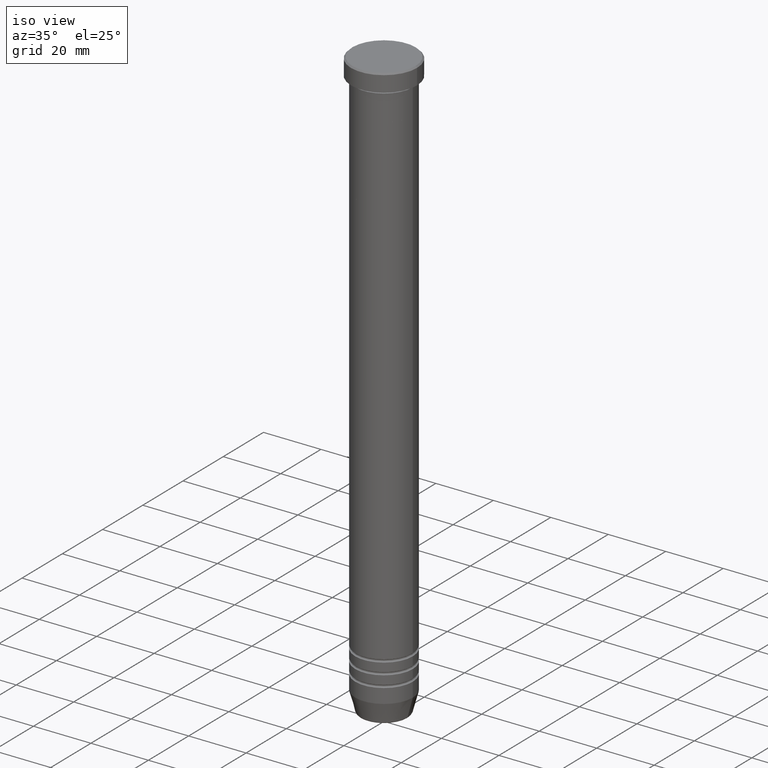
[diagram: clean part render]
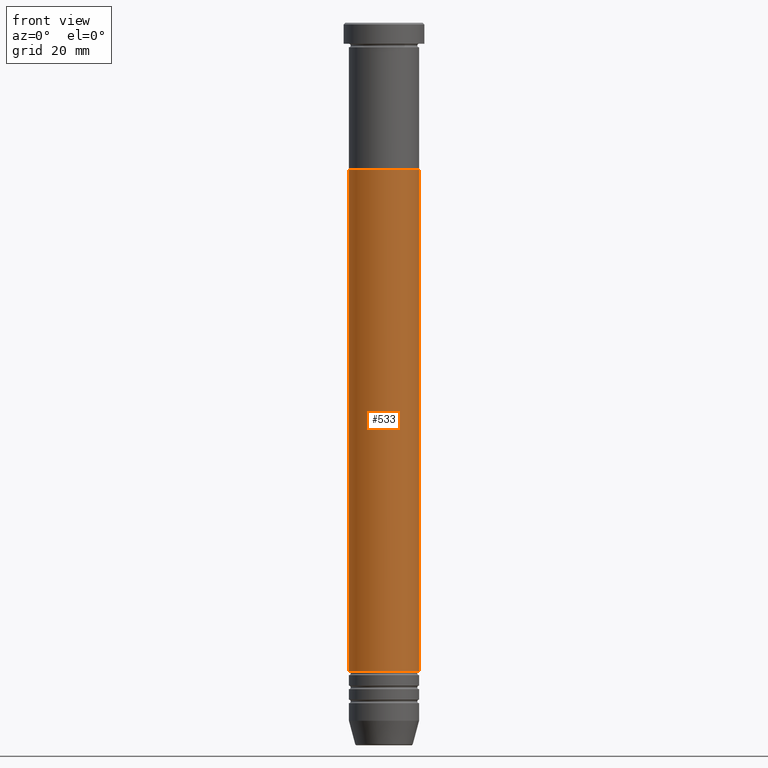
[diagram: tour spotlight — one face highlighted and labeled with its STEP entity id]
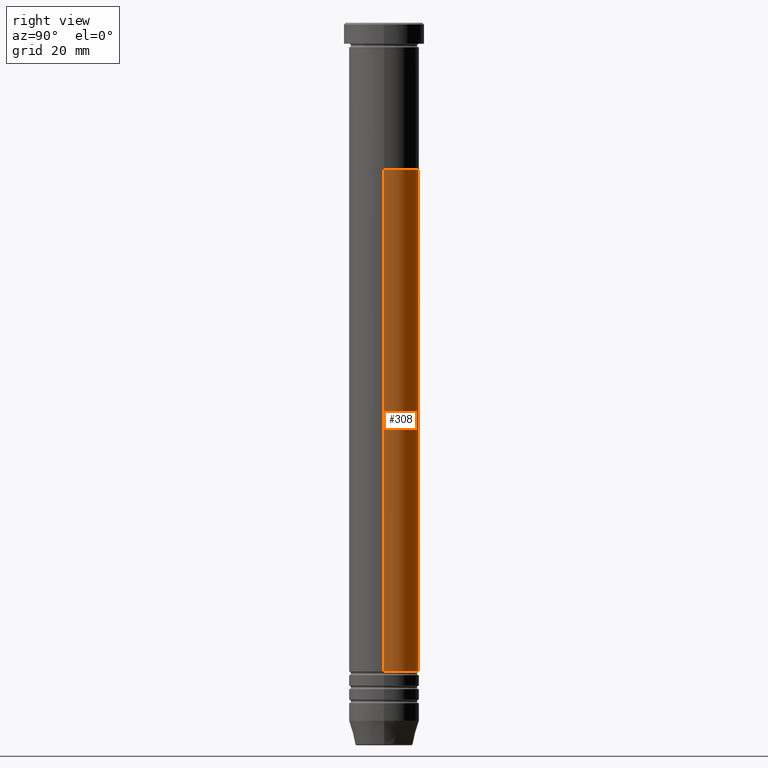
[diagram: tour spotlight — one face highlighted and labeled with its STEP entity id]
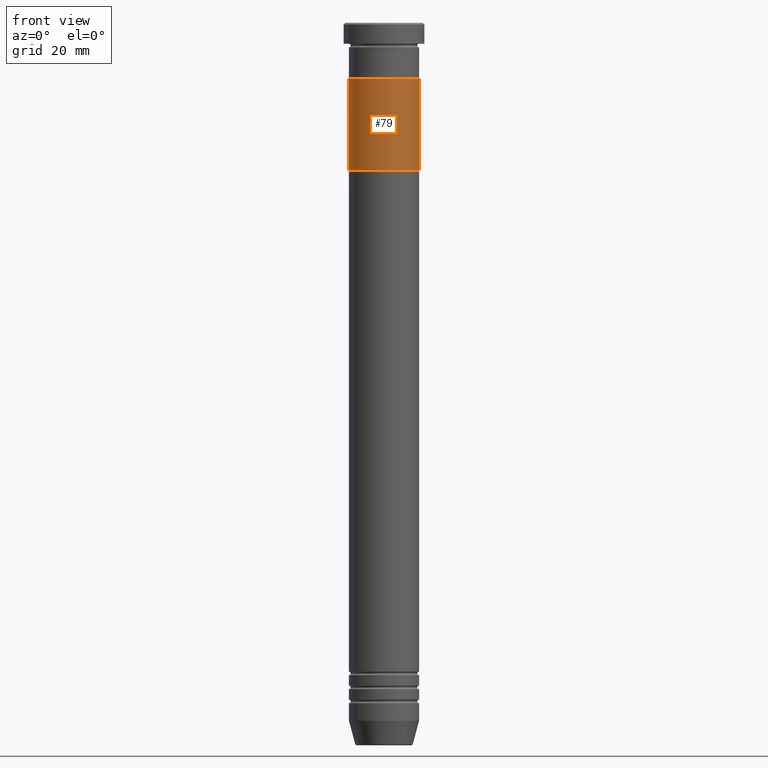
[diagram: tour spotlight — one face highlighted and labeled with its STEP entity id]
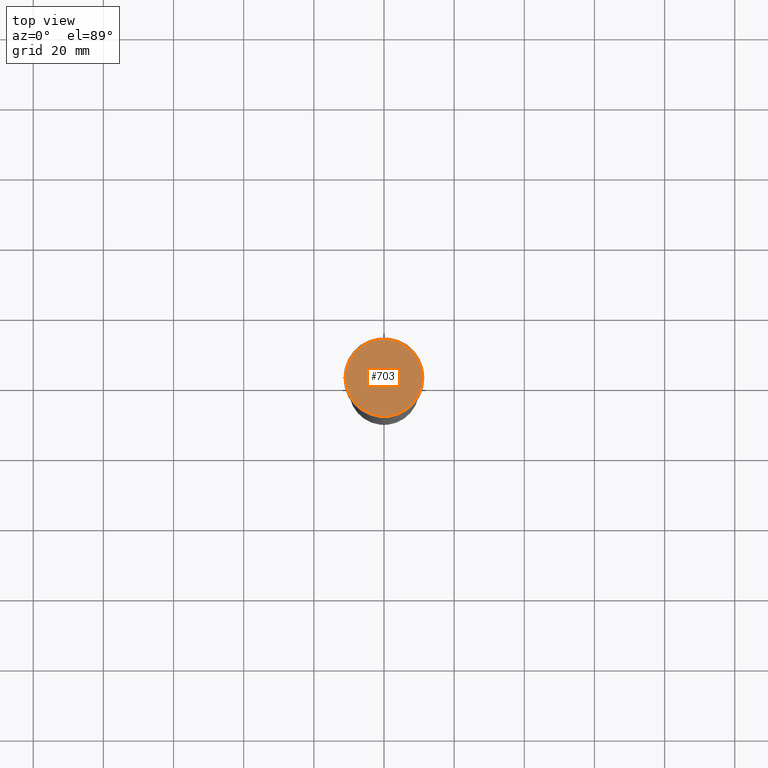
[diagram: tour spotlight — one face highlighted and labeled with its STEP entity id]
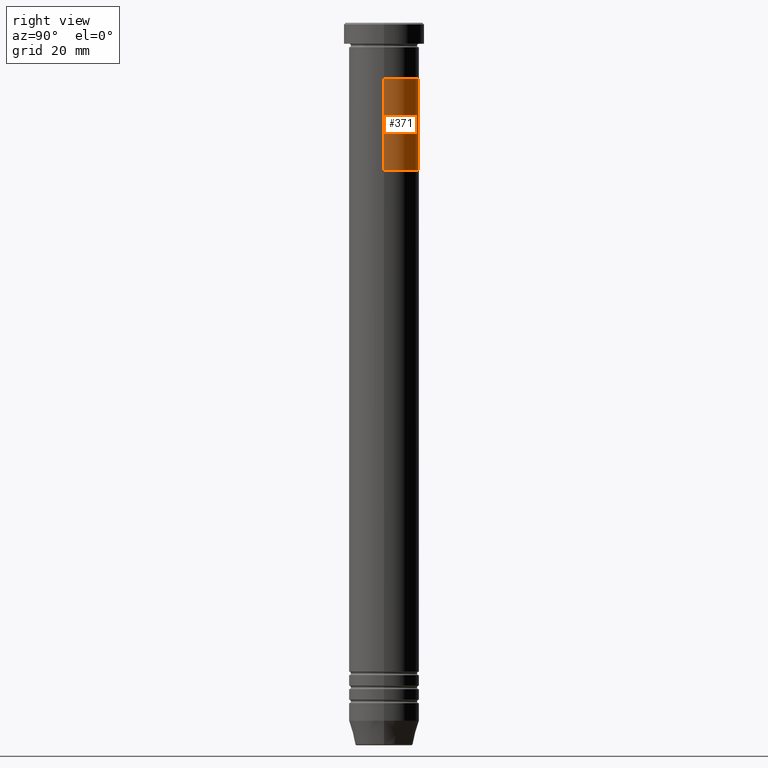
[diagram: tour spotlight — one face highlighted and labeled with its STEP entity id]
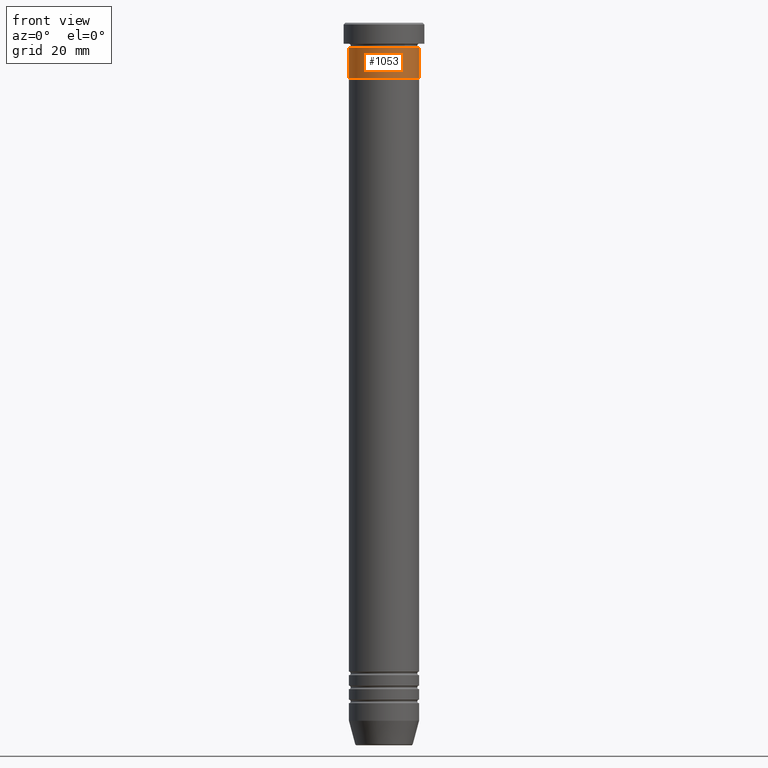
[diagram: tour spotlight — one face highlighted and labeled with its STEP entity id]
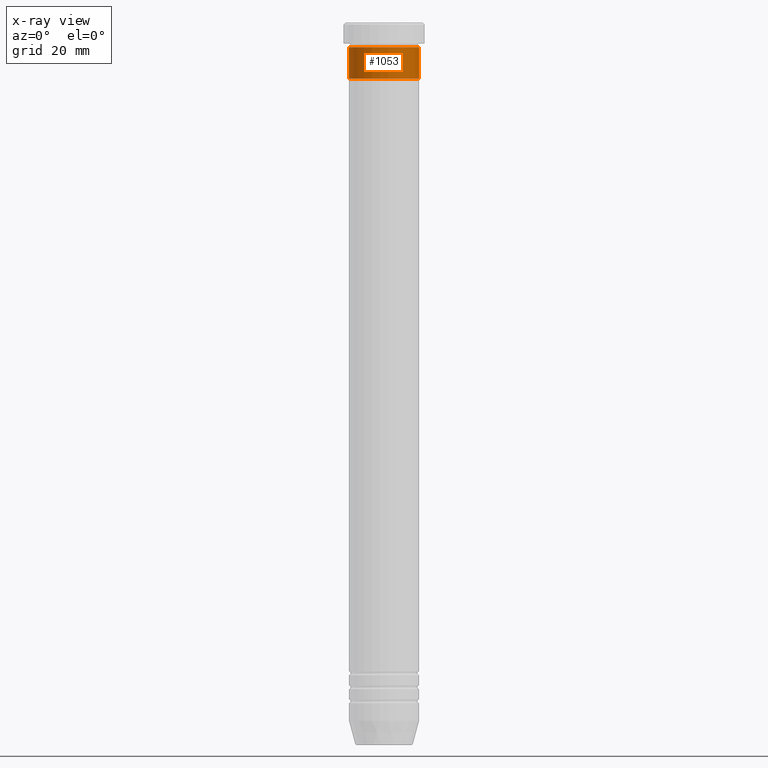
[diagram: x-ray of the same camera — body ghosted, this tour face saturated]
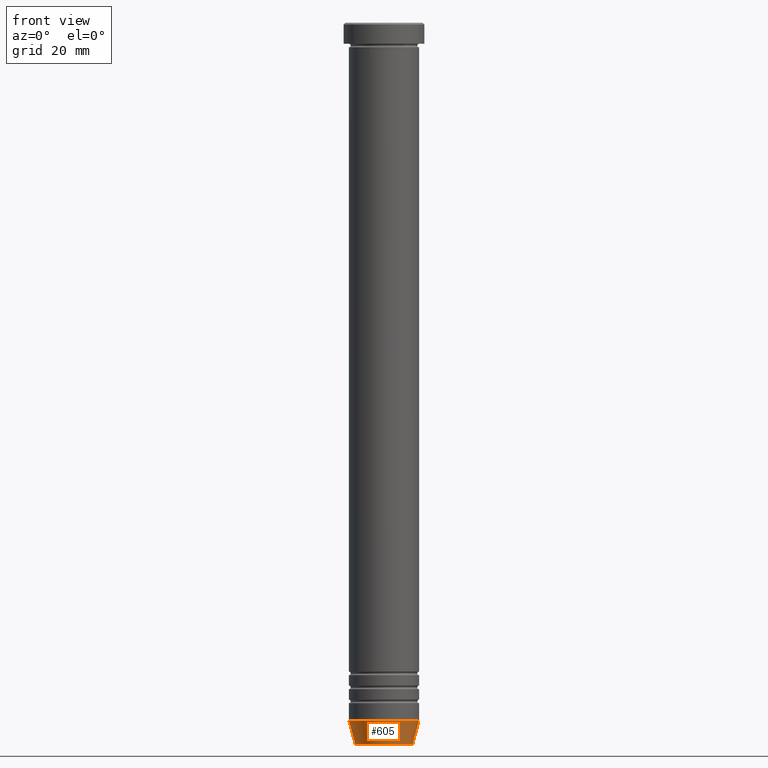
[diagram: tour spotlight — one face highlighted and labeled with its STEP entity id]
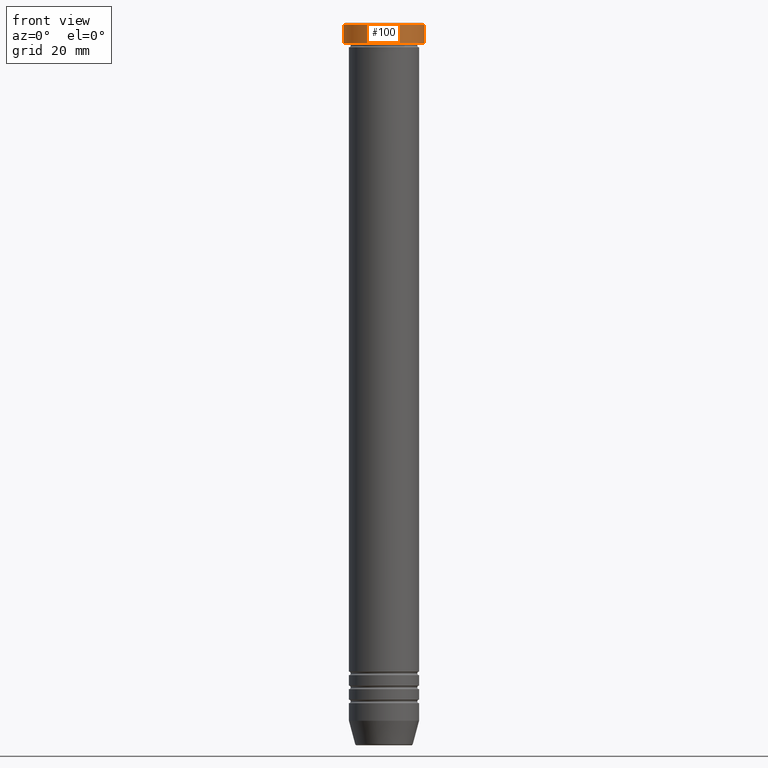
[diagram: tour spotlight — one face highlighted and labeled with its STEP entity id]
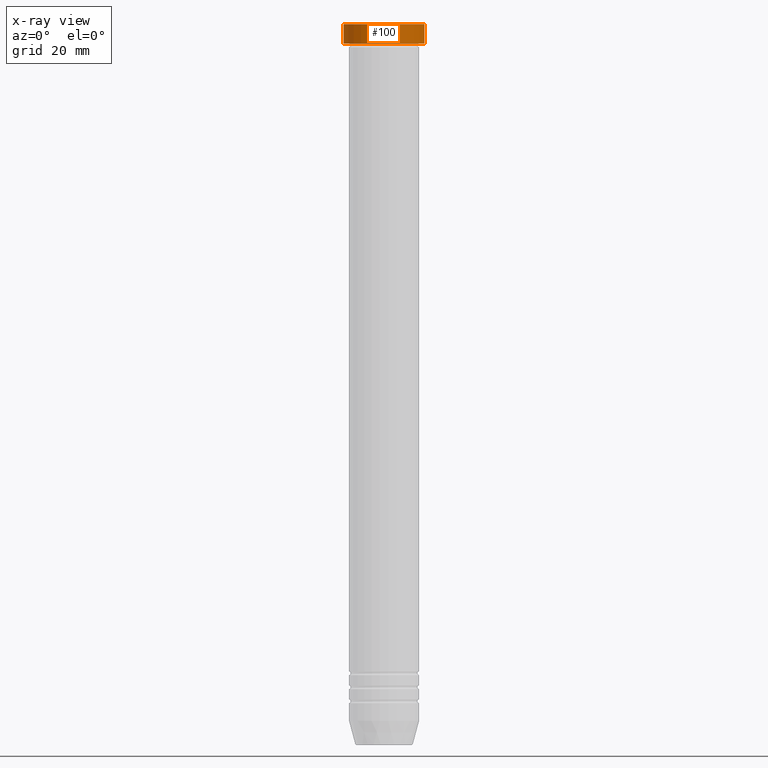
[diagram: x-ray of the same camera — body ghosted, this tour face saturated]
A machine part: a face-by-face anatomy tour. The part has 43 B-rep faces; the first image is the clean iso view, then the 8 largest visible faces are spotlighted one at a time (largest first), each with its STEP entity span.

Face 1 — front view, entity #533. In plain terms, the highlighted cylindrical surface (edge-blend (fillet) strip) has radius 10 mm, axis along (-0, -0, 1).
Definition (entity closure, byte-faithful):
#2 = VERTEX_POINT ( 'NONE', #704 ) ;
#48 = CARTESIAN_POINT ( 'NONE',  ( 9.999999999999992895, 0.000000000000000000, -185.0000000000000284 ) ) ;
#49 = CARTESIAN_POINT ( 'NONE',  ( -9.999999999999992895, 1.224646799147352665E-15, -185.0000000000000284 ) ) ;
#50 = DIRECTION ( 'NONE',  ( -0.000000000000000000, -0.000000000000000000, 1.000000000000000000 ) ) ;
#108 = DIRECTION ( 'NONE',  ( -0.000000000000000000, -0.000000000000000000, 1.000000000000000000 ) ) ;
#113 = FACE_OUTER_BOUND ( 'NONE', #596, .T. ) ;
#152 = CARTESIAN_POINT ( 'NONE',  ( -9.999999999999996447, 1.224646799147352862E-15, 0.000000000000000000 ) ) ;
#162 = VERTEX_POINT ( 'NONE', #745 ) ;
#171 = VERTEX_POINT ( 'NONE', #48 ) ;
#190 = DIRECTION ( 'NONE',  ( -0.000000000000000000, -0.000000000000000000, 1.000000000000000000 ) ) ;
#196 = CARTESIAN_POINT ( 'NONE',  ( 9.999999999999996447, 0.000000000000000000, 0.000000000000000000 ) ) ;
#248 = AXIS2_PLACEMENT_3D ( 'NONE', #1074, #278, #981 ) ;
#264 = DIRECTION ( 'NONE',  ( -0.000000000000000000, -0.000000000000000000, 1.000000000000000000 ) ) ;
#278 = DIRECTION ( 'NONE',  ( -0.000000000000000000, -0.000000000000000000, 1.000000000000000000 ) ) ;
#320 = VECTOR ( 'NONE', #108, 1000.000000000000000 ) ;
#359 = EDGE_CURVE ( 'NONE', #998, #162, #855, .T. ) ;
#415 = DIRECTION ( 'NONE',  ( 1.000000000000000000, 0.000000000000000000, 0.000000000000000000 ) ) ;
#443 = VECTOR ( 'NONE', #50, 1000.000000000000000 ) ;
#450 = CYLINDRICAL_SURFACE ( 'NONE', #653, 9.999999999999996447 ) ;
#453 = EDGE_CURVE ( 'NONE', #171, #2, #712, .T. ) ;
#507 = CARTESIAN_POINT ( 'NONE',  ( 0.000000000000000000, 0.000000000000000000, -41.99999999999999289 ) ) ;
#522 = EDGE_CURVE ( 'NONE', #998, #171, #1138, .T. ) ;
#530 = DIRECTION ( 'NONE',  ( 1.000000000000000000, 0.000000000000000000, 0.000000000000000000 ) ) ;
#533 = ADVANCED_FACE ( 'NONE', ( #113 ), #450, .T. ) ;
#560 = AXIS2_PLACEMENT_3D ( 'NONE', #507, #264, #415 ) ;
#596 = EDGE_LOOP ( 'NONE', ( #1090, #1065, #1137, #1073 ) ) ;
#653 = AXIS2_PLACEMENT_3D ( 'NONE', #972, #190, #530 ) ;
#668 = CIRCLE ( 'NONE', #560, 10.00000000000000000 ) ;
#704 = CARTESIAN_POINT ( 'NONE',  ( 10.00000000000000000, 0.000000000000000000, -41.99999999999999289 ) ) ;
#712 = LINE ( 'NONE', #196, #320 ) ;
#745 = CARTESIAN_POINT ( 'NONE',  ( -10.00000000000000178, 1.224646799147353454E-15, -41.99999999999999289 ) ) ;
#855 = LINE ( 'NONE', #152, #443 ) ;
#972 = CARTESIAN_POINT ( 'NONE',  ( 0.000000000000000000, 0.000000000000000000, 0.000000000000000000 ) ) ;
#981 = DIRECTION ( 'NONE',  ( 1.000000000000000000, 0.000000000000000000, 0.000000000000000000 ) ) ;
#998 = VERTEX_POINT ( 'NONE', #49 ) ;
#1065 = ORIENTED_EDGE ( 'NONE', *, *, #522, .T. ) ;
#1073 = ORIENTED_EDGE ( 'NONE', *, *, #1143, .F. ) ;
#1074 = CARTESIAN_POINT ( 'NONE',  ( 0.000000000000000000, 0.000000000000000000, -185.0000000000000284 ) ) ;
#1090 = ORIENTED_EDGE ( 'NONE', *, *, #359, .F. ) ;
#1137 = ORIENTED_EDGE ( 'NONE', *, *, #453, .T. ) ;
#1138 = CIRCLE ( 'NONE', #248, 9.999999999999992895 ) ;
#1143 = EDGE_CURVE ( 'NONE', #162, #2, #668, .T. ) ;

Face 2 — right view, entity #308. In plain terms, the highlighted cylindrical surface (edge-blend (fillet) strip) has radius 10 mm, axis along (-0, -0, 1).
Definition (entity closure, byte-faithful):
#2 = VERTEX_POINT ( 'NONE', #704 ) ;
#13 = EDGE_CURVE ( 'NONE', #171, #998, #948, .T. ) ;
#29 = DIRECTION ( 'NONE',  ( 1.000000000000000000, 0.000000000000000000, 0.000000000000000000 ) ) ;
#48 = CARTESIAN_POINT ( 'NONE',  ( 9.999999999999992895, 0.000000000000000000, -185.0000000000000284 ) ) ;
#49 = CARTESIAN_POINT ( 'NONE',  ( -9.999999999999992895, 1.224646799147352665E-15, -185.0000000000000284 ) ) ;
#50 = DIRECTION ( 'NONE',  ( -0.000000000000000000, -0.000000000000000000, 1.000000000000000000 ) ) ;
#108 = DIRECTION ( 'NONE',  ( -0.000000000000000000, -0.000000000000000000, 1.000000000000000000 ) ) ;
#152 = CARTESIAN_POINT ( 'NONE',  ( -9.999999999999996447, 1.224646799147352862E-15, 0.000000000000000000 ) ) ;
#162 = VERTEX_POINT ( 'NONE', #745 ) ;
#171 = VERTEX_POINT ( 'NONE', #48 ) ;
#186 = DIRECTION ( 'NONE',  ( -0.000000000000000000, -0.000000000000000000, 1.000000000000000000 ) ) ;
#196 = CARTESIAN_POINT ( 'NONE',  ( 9.999999999999996447, 0.000000000000000000, 0.000000000000000000 ) ) ;
#228 = DIRECTION ( 'NONE',  ( -0.000000000000000000, -0.000000000000000000, 1.000000000000000000 ) ) ;
#308 = ADVANCED_FACE ( 'NONE', ( #1014 ), #1021, .T. ) ;
#320 = VECTOR ( 'NONE', #108, 1000.000000000000000 ) ;
#335 = CARTESIAN_POINT ( 'NONE',  ( 0.000000000000000000, 0.000000000000000000, -41.99999999999999289 ) ) ;
#359 = EDGE_CURVE ( 'NONE', #998, #162, #855, .T. ) ;
#387 = AXIS2_PLACEMENT_3D ( 'NONE', #335, #228, #862 ) ;
#443 = VECTOR ( 'NONE', #50, 1000.000000000000000 ) ;
#453 = EDGE_CURVE ( 'NONE', #171, #2, #712, .T. ) ;
#466 = DIRECTION ( 'NONE',  ( -0.000000000000000000, -0.000000000000000000, 1.000000000000000000 ) ) ;
#516 = ORIENTED_EDGE ( 'NONE', *, *, #359, .T. ) ;
#531 = DIRECTION ( 'NONE',  ( 1.000000000000000000, 0.000000000000000000, 0.000000000000000000 ) ) ;
#538 = AXIS2_PLACEMENT_3D ( 'NONE', #975, #186, #531 ) ;
#611 = ORIENTED_EDGE ( 'NONE', *, *, #13, .T. ) ;
#641 = CIRCLE ( 'NONE', #387, 10.00000000000000000 ) ;
#685 = ORIENTED_EDGE ( 'NONE', *, *, #453, .F. ) ;
#704 = CARTESIAN_POINT ( 'NONE',  ( 10.00000000000000000, 0.000000000000000000, -41.99999999999999289 ) ) ;
#712 = LINE ( 'NONE', #196, #320 ) ;
#745 = CARTESIAN_POINT ( 'NONE',  ( -10.00000000000000178, 1.224646799147353454E-15, -41.99999999999999289 ) ) ;
#827 = EDGE_LOOP ( 'NONE', ( #611, #516, #1133, #685 ) ) ;
#855 = LINE ( 'NONE', #152, #443 ) ;
#862 = DIRECTION ( 'NONE',  ( 1.000000000000000000, 0.000000000000000000, 0.000000000000000000 ) ) ;
#898 = EDGE_CURVE ( 'NONE', #2, #162, #641, .T. ) ;
#948 = CIRCLE ( 'NONE', #538, 9.999999999999992895 ) ;
#949 = AXIS2_PLACEMENT_3D ( 'NONE', #1001, #466, #29 ) ;
#975 = CARTESIAN_POINT ( 'NONE',  ( 0.000000000000000000, 0.000000000000000000, -185.0000000000000284 ) ) ;
#998 = VERTEX_POINT ( 'NONE', #49 ) ;
#1001 = CARTESIAN_POINT ( 'NONE',  ( 0.000000000000000000, 0.000000000000000000, 0.000000000000000000 ) ) ;
#1014 = FACE_OUTER_BOUND ( 'NONE', #827, .T. ) ;
#1021 = CYLINDRICAL_SURFACE ( 'NONE', #949, 9.999999999999996447 ) ;
#1133 = ORIENTED_EDGE ( 'NONE', *, *, #898, .F. ) ;

Face 3 — front view, entity #79. In plain terms, the highlighted cylindrical surface (edge-blend (fillet) strip) has radius 10 mm, axis along (-0, -0, 1).
Definition (entity closure, byte-faithful):
#39 = ORIENTED_EDGE ( 'NONE', *, *, #610, .F. ) ;
#79 = ADVANCED_FACE ( 'NONE', ( #644 ), #139, .T. ) ;
#107 = VECTOR ( 'NONE', #929, 1000.000000000000000 ) ;
#134 = VERTEX_POINT ( 'NONE', #294 ) ;
#139 = CYLINDRICAL_SURFACE ( 'NONE', #598, 10.00000000000000000 ) ;
#188 = DIRECTION ( 'NONE',  ( -0.000000000000000000, -0.000000000000000000, 1.000000000000000000 ) ) ;
#220 = EDGE_CURVE ( 'NONE', #375, #650, #1091, .T. ) ;
#294 = CARTESIAN_POINT ( 'NONE',  ( -10.00000000000000000, 1.224646799147353059E-15, -41.99999999999999289 ) ) ;
#343 = ORIENTED_EDGE ( 'NONE', *, *, #220, .T. ) ;
#375 = VERTEX_POINT ( 'NONE', #488 ) ;
#389 = EDGE_CURVE ( 'NONE', #1072, #134, #910, .T. ) ;
#447 = LINE ( 'NONE', #630, #970 ) ;
#468 = EDGE_CURVE ( 'NONE', #1072, #375, #447, .T. ) ;
#488 = CARTESIAN_POINT ( 'NONE',  ( 10.00000000000000000, 0.000000000000000000, -16.00000000000000000 ) ) ;
#489 = CARTESIAN_POINT ( 'NONE',  ( 0.000000000000000000, 0.000000000000000000, -41.99999999999999289 ) ) ;
#554 = ORIENTED_EDGE ( 'NONE', *, *, #389, .F. ) ;
#598 = AXIS2_PLACEMENT_3D ( 'NONE', #489, #914, #662 ) ;
#610 = EDGE_CURVE ( 'NONE', #134, #650, #1033, .T. ) ;
#619 = DIRECTION ( 'NONE',  ( -1.000000000000000000, 0.000000000000000000, 0.000000000000000000 ) ) ;
#630 = CARTESIAN_POINT ( 'NONE',  ( 10.00000000000000000, 0.000000000000000000, -41.99999999999999289 ) ) ;
#644 = FACE_OUTER_BOUND ( 'NONE', #866, .T. ) ;
#650 = VERTEX_POINT ( 'NONE', #768 ) ;
#652 = AXIS2_PLACEMENT_3D ( 'NONE', #658, #660, #619 ) ;
#658 = CARTESIAN_POINT ( 'NONE',  ( 0.000000000000000000, 0.000000000000000000, -16.00000000000000000 ) ) ;
#660 = DIRECTION ( 'NONE',  ( 0.000000000000000000, 0.000000000000000000, -1.000000000000000000 ) ) ;
#662 = DIRECTION ( 'NONE',  ( 1.000000000000000000, 0.000000000000000000, 0.000000000000000000 ) ) ;
#678 = DIRECTION ( 'NONE',  ( -1.000000000000000000, 0.000000000000000000, 0.000000000000000000 ) ) ;
#768 = CARTESIAN_POINT ( 'NONE',  ( -10.00000000000000000, 1.224646799147353059E-15, -16.00000000000000000 ) ) ;
#782 = ORIENTED_EDGE ( 'NONE', *, *, #468, .T. ) ;
#785 = AXIS2_PLACEMENT_3D ( 'NONE', #842, #960, #678 ) ;
#842 = CARTESIAN_POINT ( 'NONE',  ( 0.000000000000000000, 0.000000000000000000, -41.99999999999999289 ) ) ;
#846 = CARTESIAN_POINT ( 'NONE',  ( -10.00000000000000000, 1.224646799147353059E-15, -41.99999999999999289 ) ) ;
#866 = EDGE_LOOP ( 'NONE', ( #39, #554, #782, #343 ) ) ;
#910 = CIRCLE ( 'NONE', #785, 10.00000000000000000 ) ;
#914 = DIRECTION ( 'NONE',  ( -0.000000000000000000, -0.000000000000000000, 1.000000000000000000 ) ) ;
#929 = DIRECTION ( 'NONE',  ( -0.000000000000000000, -0.000000000000000000, 1.000000000000000000 ) ) ;
#960 = DIRECTION ( 'NONE',  ( 0.000000000000000000, 0.000000000000000000, -1.000000000000000000 ) ) ;
#970 = VECTOR ( 'NONE', #188, 1000.000000000000000 ) ;
#1033 = LINE ( 'NONE', #846, #107 ) ;
#1072 = VERTEX_POINT ( 'NONE', #1146 ) ;
#1091 = CIRCLE ( 'NONE', #652, 10.00000000000000000 ) ;
#1146 = CARTESIAN_POINT ( 'NONE',  ( 10.00000000000000000, 0.000000000000000000, -41.99999999999999289 ) ) ;

Face 4 — top view, entity #703. In plain terms, the highlighted planar face has unit normal (0, -0, 1).
Definition (entity closure, byte-faithful):
#71 = ORIENTED_EDGE ( 'NONE', *, *, #890, .T. ) ;
#91 = DIRECTION ( 'NONE',  ( 1.000000000000000000, 0.000000000000000000, 0.000000000000000000 ) ) ;
#147 = CARTESIAN_POINT ( 'NONE',  ( 11.00000000000000355, 1.377727649040772389E-15, 0.000000000000000000 ) ) ;
#160 = EDGE_CURVE ( 'NONE', #969, #416, #539, .T. ) ;
#179 = PLANE ( 'NONE',  #458 ) ;
#306 = CARTESIAN_POINT ( 'NONE',  ( 0.000000000000000000, 0.000000000000000000, 0.000000000000000000 ) ) ;
#319 = CARTESIAN_POINT ( 'NONE',  ( -11.00000000000000355, 0.000000000000000000, 0.000000000000000000 ) ) ;
#378 = CARTESIAN_POINT ( 'NONE',  ( 0.000000000000000000, 0.000000000000000000, 0.000000000000000000 ) ) ;
#416 = VERTEX_POINT ( 'NONE', #319 ) ;
#435 = EDGE_LOOP ( 'NONE', ( #71, #995 ) ) ;
#458 = AXIS2_PLACEMENT_3D ( 'NONE', #1131, #618, #91 ) ;
#524 = AXIS2_PLACEMENT_3D ( 'NONE', #306, #651, #648 ) ;
#539 = CIRCLE ( 'NONE', #524, 11.00000000000000355 ) ;
#618 = DIRECTION ( 'NONE',  ( 0.000000000000000000, -0.000000000000000000, 1.000000000000000000 ) ) ;
#648 = DIRECTION ( 'NONE',  ( 1.000000000000000000, 0.000000000000000000, 0.000000000000000000 ) ) ;
#651 = DIRECTION ( 'NONE',  ( -0.000000000000000000, -0.000000000000000000, 1.000000000000000000 ) ) ;
#690 = CIRCLE ( 'NONE', #1079, 11.00000000000000355 ) ;
#703 = ADVANCED_FACE ( 'NONE', ( #967 ), #179, .T. ) ;
#734 = DIRECTION ( 'NONE',  ( -0.000000000000000000, -0.000000000000000000, 1.000000000000000000 ) ) ;
#890 = EDGE_CURVE ( 'NONE', #416, #969, #690, .T. ) ;
#967 = FACE_OUTER_BOUND ( 'NONE', #435, .T. ) ;
#969 = VERTEX_POINT ( 'NONE', #147 ) ;
#995 = ORIENTED_EDGE ( 'NONE', *, *, #160, .T. ) ;
#1010 = DIRECTION ( 'NONE',  ( 1.000000000000000000, 0.000000000000000000, 0.000000000000000000 ) ) ;
#1079 = AXIS2_PLACEMENT_3D ( 'NONE', #378, #734, #1010 ) ;
#1131 = CARTESIAN_POINT ( 'NONE',  ( 0.000000000000000000, 0.000000000000000000, 0.000000000000000000 ) ) ;

Face 5 — right view, entity #371. In plain terms, the highlighted cylindrical surface (edge-blend (fillet) strip) has radius 10 mm, axis along (-0, -0, 1).
Definition (entity closure, byte-faithful):
#14 = ORIENTED_EDGE ( 'NONE', *, *, #468, .F. ) ;
#56 = EDGE_LOOP ( 'NONE', ( #251, #461, #271, #14 ) ) ;
#107 = VECTOR ( 'NONE', #929, 1000.000000000000000 ) ;
#134 = VERTEX_POINT ( 'NONE', #294 ) ;
#148 = CARTESIAN_POINT ( 'NONE',  ( 0.000000000000000000, 0.000000000000000000, -41.99999999999999289 ) ) ;
#170 = EDGE_CURVE ( 'NONE', #134, #1072, #577, .T. ) ;
#188 = DIRECTION ( 'NONE',  ( -0.000000000000000000, -0.000000000000000000, 1.000000000000000000 ) ) ;
#204 = CARTESIAN_POINT ( 'NONE',  ( 0.000000000000000000, 0.000000000000000000, -41.99999999999999289 ) ) ;
#221 = AXIS2_PLACEMENT_3D ( 'NONE', #148, #585, #422 ) ;
#251 = ORIENTED_EDGE ( 'NONE', *, *, #170, .F. ) ;
#271 = ORIENTED_EDGE ( 'NONE', *, *, #982, .T. ) ;
#294 = CARTESIAN_POINT ( 'NONE',  ( -10.00000000000000000, 1.224646799147353059E-15, -41.99999999999999289 ) ) ;
#371 = ADVANCED_FACE ( 'NONE', ( #617 ), #863, .T. ) ;
#375 = VERTEX_POINT ( 'NONE', #488 ) ;
#422 = DIRECTION ( 'NONE',  ( 1.000000000000000000, 0.000000000000000000, 0.000000000000000000 ) ) ;
#444 = CIRCLE ( 'NONE', #604, 10.00000000000000000 ) ;
#447 = LINE ( 'NONE', #630, #970 ) ;
#461 = ORIENTED_EDGE ( 'NONE', *, *, #610, .T. ) ;
#468 = EDGE_CURVE ( 'NONE', #1072, #375, #447, .T. ) ;
#488 = CARTESIAN_POINT ( 'NONE',  ( 10.00000000000000000, 0.000000000000000000, -16.00000000000000000 ) ) ;
#556 = DIRECTION ( 'NONE',  ( -1.000000000000000000, 0.000000000000000000, 0.000000000000000000 ) ) ;
#577 = CIRCLE ( 'NONE', #664, 10.00000000000000000 ) ;
#585 = DIRECTION ( 'NONE',  ( -0.000000000000000000, -0.000000000000000000, 1.000000000000000000 ) ) ;
#604 = AXIS2_PLACEMENT_3D ( 'NONE', #676, #749, #672 ) ;
#610 = EDGE_CURVE ( 'NONE', #134, #650, #1033, .T. ) ;
#617 = FACE_OUTER_BOUND ( 'NONE', #56, .T. ) ;
#630 = CARTESIAN_POINT ( 'NONE',  ( 10.00000000000000000, 0.000000000000000000, -41.99999999999999289 ) ) ;
#650 = VERTEX_POINT ( 'NONE', #768 ) ;
#664 = AXIS2_PLACEMENT_3D ( 'NONE', #204, #1000, #556 ) ;
#672 = DIRECTION ( 'NONE',  ( -1.000000000000000000, 0.000000000000000000, 0.000000000000000000 ) ) ;
#676 = CARTESIAN_POINT ( 'NONE',  ( 0.000000000000000000, 0.000000000000000000, -16.00000000000000000 ) ) ;
#749 = DIRECTION ( 'NONE',  ( 0.000000000000000000, 0.000000000000000000, -1.000000000000000000 ) ) ;
#768 = CARTESIAN_POINT ( 'NONE',  ( -10.00000000000000000, 1.224646799147353059E-15, -16.00000000000000000 ) ) ;
#846 = CARTESIAN_POINT ( 'NONE',  ( -10.00000000000000000, 1.224646799147353059E-15, -41.99999999999999289 ) ) ;
#863 = CYLINDRICAL_SURFACE ( 'NONE', #221, 10.00000000000000000 ) ;
#929 = DIRECTION ( 'NONE',  ( -0.000000000000000000, -0.000000000000000000, 1.000000000000000000 ) ) ;
#970 = VECTOR ( 'NONE', #188, 1000.000000000000000 ) ;
#982 = EDGE_CURVE ( 'NONE', #650, #375, #444, .T. ) ;
#1000 = DIRECTION ( 'NONE',  ( 0.000000000000000000, 0.000000000000000000, -1.000000000000000000 ) ) ;
#1033 = LINE ( 'NONE', #846, #107 ) ;
#1072 = VERTEX_POINT ( 'NONE', #1146 ) ;
#1146 = CARTESIAN_POINT ( 'NONE',  ( 10.00000000000000000, 0.000000000000000000, -41.99999999999999289 ) ) ;

Face 6 — front view, entity #1053. An x-ray twin of the same camera follows (body ghosted, this face saturated) — the face is partly hidden behind the body. In plain terms, the highlighted cylindrical surface (edge-blend (fillet) strip) has radius 10 mm, axis along (-0, -0, 1).
Definition (entity closure, byte-faithful):
#36 = CARTESIAN_POINT ( 'NONE',  ( 10.00000000000000000, 0.000000000000000000, -16.00000000000000000 ) ) ;
#59 = CARTESIAN_POINT ( 'NONE',  ( -10.00000000000000000, 1.224646799147353256E-15, -6.999999999999999112 ) ) ;
#60 = VECTOR ( 'NONE', #760, 1000.000000000000000 ) ;
#86 = VECTOR ( 'NONE', #232, 1000.000000000000000 ) ;
#101 = ORIENTED_EDGE ( 'NONE', *, *, #295, .F. ) ;
#130 = DIRECTION ( 'NONE',  ( 1.000000000000000000, 0.000000000000000000, 0.000000000000000000 ) ) ;
#153 = ORIENTED_EDGE ( 'NONE', *, *, #766, .F. ) ;
#175 = DIRECTION ( 'NONE',  ( -0.000000000000000000, -0.000000000000000000, 1.000000000000000000 ) ) ;
#194 = AXIS2_PLACEMENT_3D ( 'NONE', #1086, #217, #297 ) ;
#198 = AXIS2_PLACEMENT_3D ( 'NONE', #517, #175, #976 ) ;
#210 = CIRCLE ( 'NONE', #1006, 10.00000000000000000 ) ;
#217 = DIRECTION ( 'NONE',  ( -0.000000000000000000, -0.000000000000000000, 1.000000000000000000 ) ) ;
#232 = DIRECTION ( 'NONE',  ( -0.000000000000000000, -0.000000000000000000, 1.000000000000000000 ) ) ;
#269 = EDGE_LOOP ( 'NONE', ( #153, #1103, #1125, #101 ) ) ;
#295 = EDGE_CURVE ( 'NONE', #1083, #1144, #802, .T. ) ;
#297 = DIRECTION ( 'NONE',  ( 1.000000000000000000, 0.000000000000000000, 0.000000000000000000 ) ) ;
#323 = LINE ( 'NONE', #497, #86 ) ;
#497 = CARTESIAN_POINT ( 'NONE',  ( 10.00000000000000000, 0.000000000000000000, 0.000000000000000000 ) ) ;
#517 = CARTESIAN_POINT ( 'NONE',  ( 0.000000000000000000, 0.000000000000000000, 0.000000000000000000 ) ) ;
#545 = VERTEX_POINT ( 'NONE', #713 ) ;
#589 = CARTESIAN_POINT ( 'NONE',  ( -10.00000000000000000, 1.224646799147353256E-15, 0.000000000000000000 ) ) ;
#599 = VERTEX_POINT ( 'NONE', #36 ) ;
#615 = CYLINDRICAL_SURFACE ( 'NONE', #198, 10.00000000000000000 ) ;
#637 = EDGE_CURVE ( 'NONE', #599, #1144, #323, .T. ) ;
#713 = CARTESIAN_POINT ( 'NONE',  ( -10.00000000000000000, 1.224646799147353256E-15, -16.00000000000000000 ) ) ;
#760 = DIRECTION ( 'NONE',  ( -0.000000000000000000, -0.000000000000000000, 1.000000000000000000 ) ) ;
#766 = EDGE_CURVE ( 'NONE', #545, #1083, #845, .T. ) ;
#796 = CARTESIAN_POINT ( 'NONE',  ( 10.00000000000000000, 0.000000000000000000, -6.999999999999999112 ) ) ;
#802 = CIRCLE ( 'NONE', #194, 10.00000000000000000 ) ;
#845 = LINE ( 'NONE', #589, #60 ) ;
#877 = EDGE_CURVE ( 'NONE', #545, #599, #210, .T. ) ;
#906 = CARTESIAN_POINT ( 'NONE',  ( 0.000000000000000000, 0.000000000000000000, -16.00000000000000000 ) ) ;
#912 = DIRECTION ( 'NONE',  ( -0.000000000000000000, -0.000000000000000000, 1.000000000000000000 ) ) ;
#976 = DIRECTION ( 'NONE',  ( 1.000000000000000000, 0.000000000000000000, 0.000000000000000000 ) ) ;
#980 = FACE_OUTER_BOUND ( 'NONE', #269, .T. ) ;
#1006 = AXIS2_PLACEMENT_3D ( 'NONE', #906, #912, #130 ) ;
#1053 = ADVANCED_FACE ( 'NONE', ( #980 ), #615, .T. ) ;
#1083 = VERTEX_POINT ( 'NONE', #59 ) ;
#1086 = CARTESIAN_POINT ( 'NONE',  ( 0.000000000000000000, 0.000000000000000000, -6.999999999999999112 ) ) ;
#1103 = ORIENTED_EDGE ( 'NONE', *, *, #877, .T. ) ;
#1125 = ORIENTED_EDGE ( 'NONE', *, *, #637, .T. ) ;
#1144 = VERTEX_POINT ( 'NONE', #796 ) ;

Face 7 — front view, entity #605. In plain terms, the highlighted conical surface has half-angle 15 deg.
Definition (entity closure, byte-faithful):
#4 = CARTESIAN_POINT ( 'NONE',  ( 8.124355652982140796, 0.000000000000000000, -206.0000000000000284 ) ) ;
#26 = CARTESIAN_POINT ( 'NONE',  ( 8.223655072137193045, 0.000000000000000000, -205.6294095225512990 ) ) ;
#34 = EDGE_CURVE ( 'NONE', #114, #290, #342, .T. ) ;
#53 = CARTESIAN_POINT ( 'NONE',  ( -10.00000000000000000, 1.224646799147353256E-15, -199.0000000000000000 ) ) ;
#72 = FACE_OUTER_BOUND ( 'NONE', #124, .T. ) ;
#83 = ORIENTED_EDGE ( 'NONE', *, *, #663, .F. ) ;
#102 = DIRECTION ( 'NONE',  ( 1.000000000000000000, 0.000000000000000000, 0.000000000000000000 ) ) ;
#106 = VECTOR ( 'NONE', #844, 1000.000000000000114 ) ;
#114 = VERTEX_POINT ( 'NONE', #26 ) ;
#116 = VERTEX_POINT ( 'NONE', #53 ) ;
#122 = CONICAL_SURFACE ( 'NONE', #739, 8.124355652982140796, 0.2617993877991493523 ) ;
#124 = EDGE_LOOP ( 'NONE', ( #933, #1147, #792, #83 ) ) ;
#199 = EDGE_CURVE ( 'NONE', #840, #116, #222, .T. ) ;
#222 = LINE ( 'NONE', #381, #106 ) ;
#252 = DIRECTION ( 'NONE',  ( -0.000000000000000000, -0.000000000000000000, 1.000000000000000000 ) ) ;
#274 = CIRCLE ( 'NONE', #639, 10.00000000000000000 ) ;
#290 = VERTEX_POINT ( 'NONE', #729 ) ;
#342 = LINE ( 'NONE', #4, #925 ) ;
#354 = DIRECTION ( 'NONE',  ( -1.000000000000000000, 0.000000000000000000, 0.000000000000000000 ) ) ;
#381 = CARTESIAN_POINT ( 'NONE',  ( -8.124355652982140796, 9.949466145559282500E-16, -206.0000000000000284 ) ) ;
#402 = DIRECTION ( 'NONE',  ( -0.000000000000000000, -0.000000000000000000, 1.000000000000000000 ) ) ;
#406 = AXIS2_PLACEMENT_3D ( 'NONE', #519, #885, #354 ) ;
#519 = CARTESIAN_POINT ( 'NONE',  ( 0.000000000000000000, 0.000000000000000000, -205.6294095225512990 ) ) ;
#583 = DIRECTION ( 'NONE',  ( 1.000000000000000000, 0.000000000000000000, 0.000000000000000000 ) ) ;
#605 = ADVANCED_FACE ( 'NONE', ( #72 ), #122, .T. ) ;
#639 = AXIS2_PLACEMENT_3D ( 'NONE', #683, #252, #102 ) ;
#642 = CARTESIAN_POINT ( 'NONE',  ( -8.223655072137193045, 1.115877042642912251E-15, -205.6294095225512990 ) ) ;
#663 = EDGE_CURVE ( 'NONE', #116, #290, #274, .T. ) ;
#683 = CARTESIAN_POINT ( 'NONE',  ( 0.000000000000000000, 0.000000000000000000, -199.0000000000000000 ) ) ;
#710 = DIRECTION ( 'NONE',  ( 0.2588190451025206840, 0.000000000000000000, 0.9659258262890683122 ) ) ;
#729 = CARTESIAN_POINT ( 'NONE',  ( 10.00000000000000000, 0.000000000000000000, -199.0000000000000000 ) ) ;
#739 = AXIS2_PLACEMENT_3D ( 'NONE', #852, #402, #583 ) ;
#792 = ORIENTED_EDGE ( 'NONE', *, *, #34, .T. ) ;
#840 = VERTEX_POINT ( 'NONE', #642 ) ;
#844 = DIRECTION ( 'NONE',  ( -0.2588190451025206840, 3.169619151431763092E-17, 0.9659258262890683122 ) ) ;
#852 = CARTESIAN_POINT ( 'NONE',  ( 0.000000000000000000, 0.000000000000000000, -206.0000000000000284 ) ) ;
#885 = DIRECTION ( 'NONE',  ( -0.000000000000000000, -0.000000000000000000, 1.000000000000000000 ) ) ;
#925 = VECTOR ( 'NONE', #710, 1000.000000000000114 ) ;
#931 = CIRCLE ( 'NONE', #406, 8.223655072137193045 ) ;
#933 = ORIENTED_EDGE ( 'NONE', *, *, #199, .F. ) ;
#1129 = EDGE_CURVE ( 'NONE', #840, #114, #931, .T. ) ;
#1147 = ORIENTED_EDGE ( 'NONE', *, *, #1129, .T. ) ;

Face 8 — front view, entity #100. An x-ray twin of the same camera follows (body ghosted, this face saturated) — the face is partly hidden behind the body. In plain terms, the highlighted cylindrical surface (partial cylindrical patch) has radius 11.5 mm, axis along (-0, -0, 1).
Definition (entity closure, byte-faithful):
#33 = LINE ( 'NONE', #940, #92 ) ;
#42 = FACE_OUTER_BOUND ( 'NONE', #1119, .T. ) ;
#92 = VECTOR ( 'NONE', #474, 1000.000000000000000 ) ;
#100 = ADVANCED_FACE ( 'NONE', ( #42 ), #825, .T. ) ;
#129 = DIRECTION ( 'NONE',  ( 1.000000000000000000, 0.000000000000000000, 0.000000000000000000 ) ) ;
#136 = ORIENTED_EDGE ( 'NONE', *, *, #731, .T. ) ;
#165 = AXIS2_PLACEMENT_3D ( 'NONE', #711, #267, #521 ) ;
#168 = CARTESIAN_POINT ( 'NONE',  ( 11.50000000000000000, 0.000000000000000000, 0.000000000000000000 ) ) ;
#267 = DIRECTION ( 'NONE',  ( -0.000000000000000000, -0.000000000000000000, 1.000000000000000000 ) ) ;
#326 = CARTESIAN_POINT ( 'NONE',  ( 11.50000000000000000, 0.000000000000000000, -6.000000000000000000 ) ) ;
#405 = VERTEX_POINT ( 'NONE', #326 ) ;
#409 = CARTESIAN_POINT ( 'NONE',  ( 11.50000000000000000, 0.000000000000000000, -0.5000000000000004441 ) ) ;
#441 = AXIS2_PLACEMENT_3D ( 'NONE', #828, #839, #129 ) ;
#474 = DIRECTION ( 'NONE',  ( -0.000000000000000000, -0.000000000000000000, 1.000000000000000000 ) ) ;
#510 = CARTESIAN_POINT ( 'NONE',  ( -11.50000000000000000, 1.408343819019456176E-15, -0.5000000000000004441 ) ) ;
#521 = DIRECTION ( 'NONE',  ( 1.000000000000000000, 0.000000000000000000, 0.000000000000000000 ) ) ;
#528 = VECTOR ( 'NONE', #856, 1000.000000000000000 ) ;
#558 = CIRCLE ( 'NONE', #987, 11.50000000000000000 ) ;
#570 = ORIENTED_EDGE ( 'NONE', *, *, #1067, .T. ) ;
#590 = DIRECTION ( 'NONE',  ( 1.000000000000000000, 0.000000000000000000, 0.000000000000000000 ) ) ;
#628 = EDGE_CURVE ( 'NONE', #1106, #901, #558, .T. ) ;
#689 = VERTEX_POINT ( 'NONE', #1141 ) ;
#711 = CARTESIAN_POINT ( 'NONE',  ( 0.000000000000000000, 0.000000000000000000, -6.000000000000000000 ) ) ;
#725 = CIRCLE ( 'NONE', #165, 11.50000000000000000 ) ;
#731 = EDGE_CURVE ( 'NONE', #405, #1106, #1123, .T. ) ;
#761 = CARTESIAN_POINT ( 'NONE',  ( 0.000000000000000000, 0.000000000000000000, -0.5000000000000004441 ) ) ;
#825 = CYLINDRICAL_SURFACE ( 'NONE', #441, 11.50000000000000000 ) ;
#828 = CARTESIAN_POINT ( 'NONE',  ( 0.000000000000000000, 0.000000000000000000, 0.000000000000000000 ) ) ;
#839 = DIRECTION ( 'NONE',  ( -0.000000000000000000, -0.000000000000000000, 1.000000000000000000 ) ) ;
#856 = DIRECTION ( 'NONE',  ( -0.000000000000000000, -0.000000000000000000, 1.000000000000000000 ) ) ;
#901 = VERTEX_POINT ( 'NONE', #510 ) ;
#940 = CARTESIAN_POINT ( 'NONE',  ( -11.50000000000000000, 1.408343819019456176E-15, 0.000000000000000000 ) ) ;
#987 = AXIS2_PLACEMENT_3D ( 'NONE', #761, #1114, #590 ) ;
#1040 = ORIENTED_EDGE ( 'NONE', *, *, #628, .T. ) ;
#1067 = EDGE_CURVE ( 'NONE', #689, #405, #725, .T. ) ;
#1095 = EDGE_CURVE ( 'NONE', #689, #901, #33, .T. ) ;
#1106 = VERTEX_POINT ( 'NONE', #409 ) ;
#1114 = DIRECTION ( 'NONE',  ( 0.000000000000000000, 0.000000000000000000, -1.000000000000000000 ) ) ;
#1119 = EDGE_LOOP ( 'NONE', ( #1124, #570, #136, #1040 ) ) ;
#1123 = LINE ( 'NONE', #168, #528 ) ;
#1124 = ORIENTED_EDGE ( 'NONE', *, *, #1095, .F. ) ;
#1141 = CARTESIAN_POINT ( 'NONE',  ( -11.50000000000000000, 1.408343819019456176E-15, -6.000000000000000000 ) ) ;